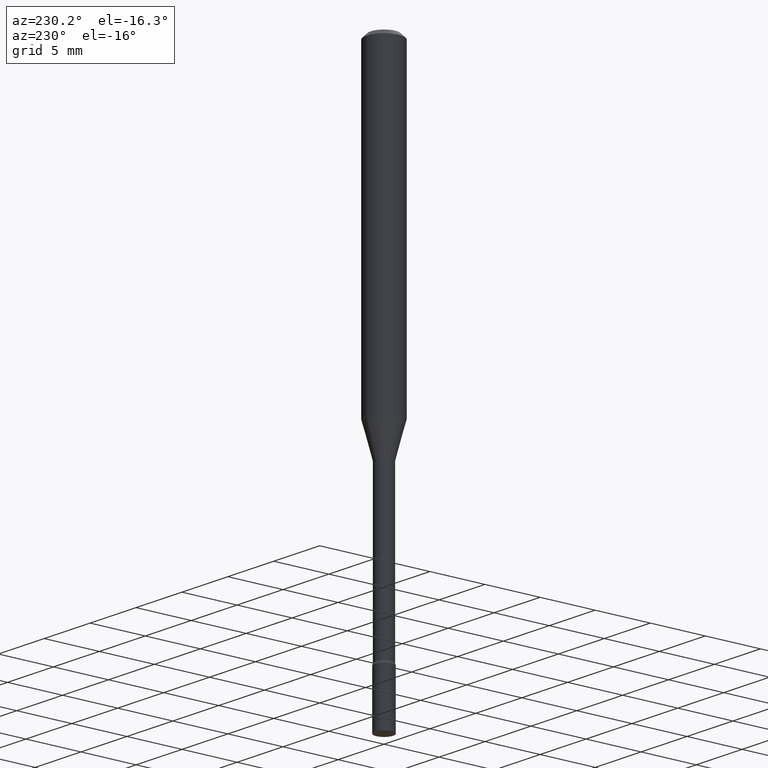
[diagram: clean part render]
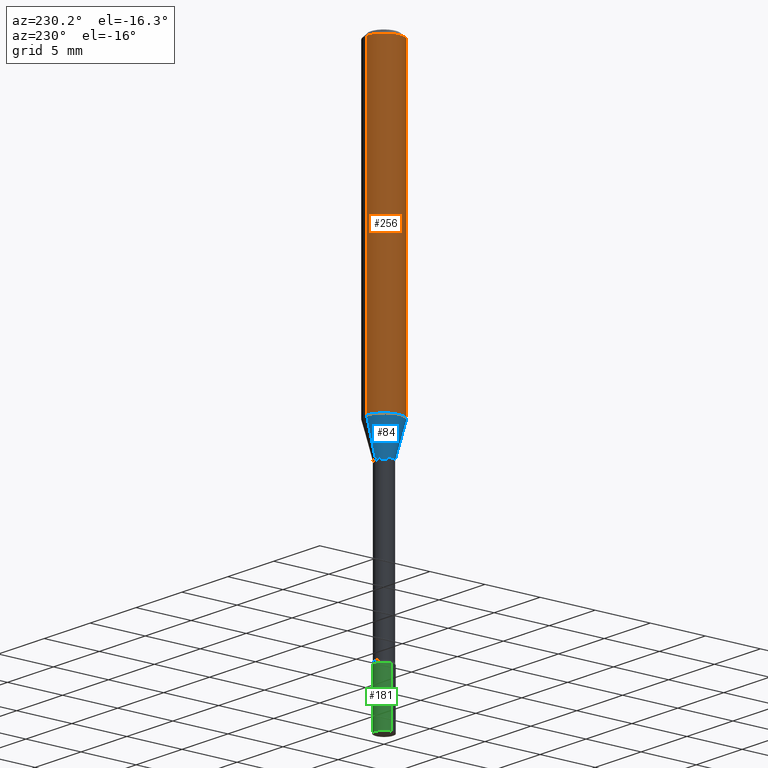
[diagram: same view with three faces highlighted in distinct colors, each labeled with its STEP entity id]
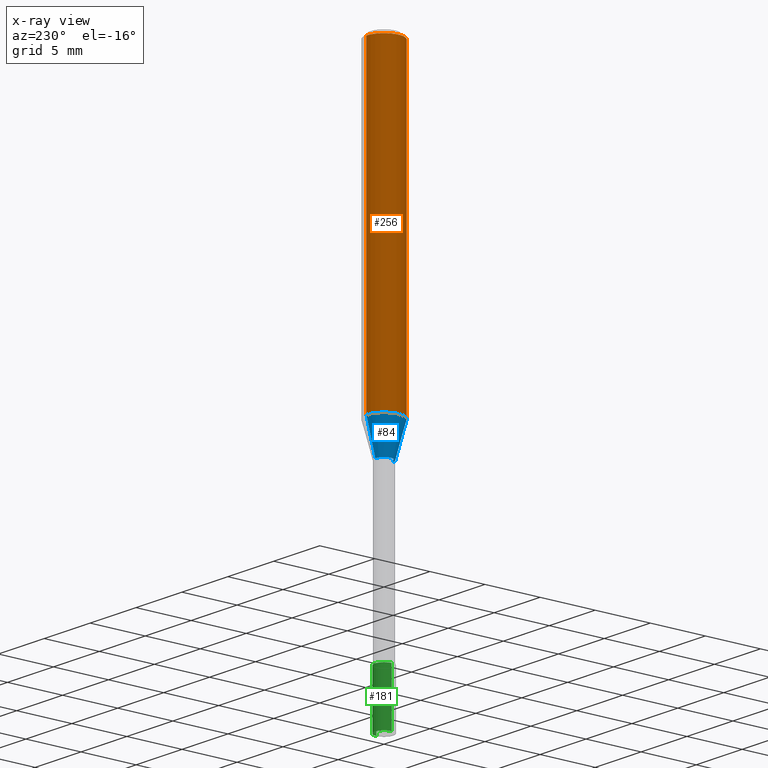
[diagram: x-ray of the same camera — body ghosted, the three highlighted faces saturated]
A machine part, auxiliary view with three faces highlighted in distinct colors.
The next image is the same camera in x-ray (body ghosted, the three faces saturated) — at least one of them is partly hidden behind the body in this view.
Their STEP definitions:

[orange] entity #256 — the highlighted cylindrical surface (edge-blend (fillet) strip) has radius 1.5875 mm, axis along (-0, 0, 1).
#1 = CIRCLE ( 'NONE', #319, 0.06250000000000000000 ) ;
#14 = VERTEX_POINT ( 'NONE', #334 ) ;
#18 = EDGE_CURVE ( 'NONE', #194, #268, #387, .T. ) ;
#22 = CARTESIAN_POINT ( 'NONE',  ( 3.668709739033173181E-31, -5.236496628825025190E-17, -0.01500000000000003067 ) ) ;
#25 = DIRECTION ( 'NONE',  ( -2.445806492688777345E-29, 3.490997752550010367E-15, 1.000000000000000000 ) ) ;
#42 = AXIS2_PLACEMENT_3D ( 'NONE', #508, #496, #258 ) ;
#58 = CARTESIAN_POINT ( 'NONE',  ( -4.364351673553916201E-16, -0.06250000000000000000, 2.181873595343755987E-16 ) ) ;
#75 = AXIS2_PLACEMENT_3D ( 'NONE', #189, #479, #113 ) ;
#97 = CIRCLE ( 'NONE', #75, 0.06250000000000000000 ) ;
#98 = DIRECTION ( 'NONE',  ( -6.982962677686265922E-15, -1.000000000000000000, 3.483106191921935554E-15 ) ) ;
#113 = DIRECTION ( 'NONE',  ( -6.982962677686265922E-15, -1.000000000000000000, 4.370956789862821150E-15 ) ) ;
#137 = CARTESIAN_POINT ( 'NONE',  ( 4.440892098500625669E-16, 0.06250000000000000000, -2.181873595343755987E-16 ) ) ;
#142 = CARTESIAN_POINT ( 'NONE',  ( -4.364351673553912750E-16, -0.06250000000000005551, -0.01499999999999981209 ) ) ;
#151 = VECTOR ( 'NONE', #25, 39.37007874015748143 ) ;
#163 = ORIENTED_EDGE ( 'NONE', *, *, #386, .T. ) ;
#182 = EDGE_LOOP ( 'NONE', ( #287, #163, #344, #443 ) ) ;
#189 = CARTESIAN_POINT ( 'NONE',  ( 2.692248343706835071E-29, -3.842754095748081161E-15, -1.100760976698174520 ) ) ;
#194 = VERTEX_POINT ( 'NONE', #300 ) ;
#239 = EDGE_CURVE ( 'NONE', #14, #268, #1, .T. ) ;
#256 = ADVANCED_FACE ( 'NONE', ( #336 ), #422, .T. ) ;
#258 = DIRECTION ( 'NONE',  ( -6.982962677686265922E-15, -1.000000000000000000, 3.490997752550009579E-15 ) ) ;
#268 = VERTEX_POINT ( 'NONE', #142 ) ;
#274 = EDGE_CURVE ( 'NONE', #360, #14, #304, .T. ) ;
#276 = CARTESIAN_POINT ( 'NONE',  ( 4.440892098500895360E-16, 0.06249999999999617667, -1.100760976698174742 ) ) ;
#287 = ORIENTED_EDGE ( 'NONE', *, *, #274, .F. ) ;
#300 = CARTESIAN_POINT ( 'NONE',  ( -4.364351673553646016E-16, -0.06250000000000383027, -1.100760976698174298 ) ) ;
#304 = LINE ( 'NONE', #137, #467 ) ;
#319 = AXIS2_PLACEMENT_3D ( 'NONE', #22, #461, #98 ) ;
#334 = CARTESIAN_POINT ( 'NONE',  ( 4.440892098500897333E-16, 0.06249999999999995837, -0.01500000000000024751 ) ) ;
#336 = FACE_OUTER_BOUND ( 'NONE', #182, .T. ) ;
#344 = ORIENTED_EDGE ( 'NONE', *, *, #18, .T. ) ;
#360 = VERTEX_POINT ( 'NONE', #276 ) ;
#386 = EDGE_CURVE ( 'NONE', #360, #194, #97, .T. ) ;
#387 = LINE ( 'NONE', #58, #151 ) ;
#422 = CYLINDRICAL_SURFACE ( 'NONE', #42, 0.06250000000000000000 ) ;
#443 = ORIENTED_EDGE ( 'NONE', *, *, #239, .F. ) ;
#461 = DIRECTION ( 'NONE',  ( -2.445806492688777345E-29, 3.490997752550009973E-15, 1.000000000000000000 ) ) ;
#465 = DIRECTION ( 'NONE',  ( -2.445806492688777345E-29, 3.490997752550010367E-15, 1.000000000000000000 ) ) ;
#467 = VECTOR ( 'NONE', #465, 39.37007874015748143 ) ;
#479 = DIRECTION ( 'NONE',  ( -2.445806492688777345E-29, 3.490997752550009973E-15, 1.000000000000000000 ) ) ;
#496 = DIRECTION ( 'NONE',  ( -2.445806492688777345E-29, 3.490997752550009973E-15, 1.000000000000000000 ) ) ;
#508 = CARTESIAN_POINT ( 'NONE',  ( 0.000000000000000000, 0.000000000000000000, 0.000000000000000000 ) ) ;

[blue] entity #84 — the highlighted conical surface has half-angle 15 deg.
#17 = LINE ( 'NONE', #62, #456 ) ;
#21 = CIRCLE ( 'NONE', #116, 0.03106111260566398607 ) ;
#62 = CARTESIAN_POINT ( 'NONE',  ( 2.207024792658399811E-16, 0.03106111260565973600, -1.218092501787273019 ) ) ;
#64 = CARTESIAN_POINT ( 'NONE',  ( 3.323958445579647462E-16, 0.03106111260565973600, -1.218092501787273019 ) ) ;
#73 = AXIS2_PLACEMENT_3D ( 'NONE', #330, #255, #366 ) ;
#75 = AXIS2_PLACEMENT_3D ( 'NONE', #189, #479, #113 ) ;
#76 = ORIENTED_EDGE ( 'NONE', *, *, #386, .F. ) ;
#84 = ADVANCED_FACE ( 'NONE', ( #515 ), #107, .T. ) ;
#94 = ORIENTED_EDGE ( 'NONE', *, *, #471, .T. ) ;
#97 = CIRCLE ( 'NONE', #75, 0.06250000000000000000 ) ;
#107 = CONICAL_SURFACE ( 'NONE', #73, 0.03106111260566398607, 0.2617993877991500740 ) ;
#113 = DIRECTION ( 'NONE',  ( -6.982962677686265922E-15, -1.000000000000000000, 4.370956789862821150E-15 ) ) ;
#114 = EDGE_CURVE ( 'NONE', #227, #194, #149, .T. ) ;
#116 = AXIS2_PLACEMENT_3D ( 'NONE', #197, #359, #518 ) ;
#146 = CARTESIAN_POINT ( 'NONE',  ( -2.168985900527322372E-16, -0.03106111260566823615, -1.218092501787272797 ) ) ;
#149 = LINE ( 'NONE', #146, #249 ) ;
#188 = DIRECTION ( 'NONE',  ( -1.807323732225328562E-15, -0.2588190451025179639, 0.9659258262890690894 ) ) ;
#189 = CARTESIAN_POINT ( 'NONE',  ( 2.692248343706835071E-29, -3.842754095748081161E-15, -1.100760976698174520 ) ) ;
#194 = VERTEX_POINT ( 'NONE', #300 ) ;
#197 = CARTESIAN_POINT ( 'NONE',  ( 2.979218549566828255E-29, -4.252358186137388202E-15, -1.218092501787273019 ) ) ;
#200 = EDGE_CURVE ( 'NONE', #296, #360, #17, .T. ) ;
#218 = CARTESIAN_POINT ( 'NONE',  ( -2.168985900527322372E-16, -0.03106111260566823615, -1.218092501787272797 ) ) ;
#227 = VERTEX_POINT ( 'NONE', #218 ) ;
#249 = VECTOR ( 'NONE', #188, 39.37007874015748854 ) ;
#255 = DIRECTION ( 'NONE',  ( -2.445806492688777345E-29, 3.490997752550009973E-15, 1.000000000000000000 ) ) ;
#272 = ORIENTED_EDGE ( 'NONE', *, *, #114, .T. ) ;
#276 = CARTESIAN_POINT ( 'NONE',  ( 4.440892098500895360E-16, 0.06249999999999617667, -1.100760976698174742 ) ) ;
#296 = VERTEX_POINT ( 'NONE', #64 ) ;
#300 = CARTESIAN_POINT ( 'NONE',  ( -4.364351673553646016E-16, -0.06250000000000383027, -1.100760976698174298 ) ) ;
#330 = CARTESIAN_POINT ( 'NONE',  ( 2.979218549566828255E-29, -4.252358186137388202E-15, -1.218092501787273019 ) ) ;
#341 = DIRECTION ( 'NONE',  ( 1.839019923739598738E-15, 0.2588190451025247363, 0.9659258262890673130 ) ) ;
#349 = ORIENTED_EDGE ( 'NONE', *, *, #200, .F. ) ;
#359 = DIRECTION ( 'NONE',  ( -2.445806492688777345E-29, 3.490997752550009973E-15, 1.000000000000000000 ) ) ;
#360 = VERTEX_POINT ( 'NONE', #276 ) ;
#366 = DIRECTION ( 'NONE',  ( -6.982962677686265922E-15, -1.000000000000000000, 4.397537249142375435E-15 ) ) ;
#386 = EDGE_CURVE ( 'NONE', #360, #194, #97, .T. ) ;
#456 = VECTOR ( 'NONE', #341, 39.37007874015748854 ) ;
#471 = EDGE_CURVE ( 'NONE', #296, #227, #21, .T. ) ;
#479 = DIRECTION ( 'NONE',  ( -2.445806492688777345E-29, 3.490997752550009973E-15, 1.000000000000000000 ) ) ;
#493 = EDGE_LOOP ( 'NONE', ( #349, #94, #272, #76 ) ) ;
#515 = FACE_OUTER_BOUND ( 'NONE', #493, .T. ) ;
#518 = DIRECTION ( 'NONE',  ( -6.982962677686265922E-15, -1.000000000000000000, 4.397537249142375435E-15 ) ) ;

[green] entity #181 — the highlighted cylindrical surface (edge-blend (fillet) strip) has radius 0.8255 mm, axis along (-0, 0, 1).
#12 = DIRECTION ( 'NONE',  ( 1.000000000000000000, -6.982962677686265922E-15, 4.876176775795935232E-29 ) ) ;
#27 = AXIS2_PLACEMENT_3D ( 'NONE', #452, #118, #12 ) ;
#30 = DIRECTION ( 'NONE',  ( -2.445468806185136597E-29, 3.491481338843145583E-15, 1.000000000000000000 ) ) ;
#54 = CARTESIAN_POINT ( 'NONE',  ( 0.03250000000000000111, -2.269462870248036484E-16, 1.584757452133678993E-30 ) ) ;
#59 = ORIENTED_EDGE ( 'NONE', *, *, #494, .T. ) ;
#72 = CARTESIAN_POINT ( 'NONE',  ( 4.890937612370273194E-29, -6.982962677686291165E-15, -2.000000000000000000 ) ) ;
#77 = CARTESIAN_POINT ( 'NONE',  ( 4.414071195164171423E-29, -6.302123816611877952E-15, -1.804999999999999938 ) ) ;
#89 = ORIENTED_EDGE ( 'NONE', *, *, #411, .T. ) ;
#111 = DIRECTION ( 'NONE',  ( 1.000000000000000000, -6.982962677686258033E-15, 0.000000000000000000 ) ) ;
#118 = DIRECTION ( 'NONE',  ( -2.445468806185136597E-29, 3.491481338843145583E-15, 1.000000000000000000 ) ) ;
#122 = AXIS2_PLACEMENT_3D ( 'NONE', #72, #30, #354 ) ;
#124 = VERTEX_POINT ( 'NONE', #162 ) ;
#132 = VERTEX_POINT ( 'NONE', #501 ) ;
#148 = EDGE_LOOP ( 'NONE', ( #89, #59, #298, #254 ) ) ;
#152 = CIRCLE ( 'NONE', #204, 0.03250000000000000111 ) ;
#162 = CARTESIAN_POINT ( 'NONE',  ( 0.03250000000000000111, -6.529070103636681305E-15, -1.804999999999999938 ) ) ;
#181 = ADVANCED_FACE ( 'NONE', ( #192 ), #322, .T. ) ;
#192 = FACE_OUTER_BOUND ( 'NONE', #148, .T. ) ;
#204 = AXIS2_PLACEMENT_3D ( 'NONE', #77, #352, #111 ) ;
#228 = DIRECTION ( 'NONE',  ( -2.445468806185136877E-29, 3.491481338843145188E-15, 1.000000000000000000 ) ) ;
#253 = EDGE_CURVE ( 'NONE', #132, #124, #345, .T. ) ;
#254 = ORIENTED_EDGE ( 'NONE', *, *, #253, .F. ) ;
#275 = LINE ( 'NONE', #477, #417 ) ;
#284 = DIRECTION ( 'NONE',  ( -2.445468806185136877E-29, 3.491481338843145188E-15, 1.000000000000000000 ) ) ;
#298 = ORIENTED_EDGE ( 'NONE', *, *, #516, .F. ) ;
#309 = VECTOR ( 'NONE', #228, 39.37007874015748143 ) ;
#322 = CYLINDRICAL_SURFACE ( 'NONE', #27, 0.03250000000000000111 ) ;
#345 = LINE ( 'NONE', #54, #309 ) ;
#352 = DIRECTION ( 'NONE',  ( -2.445468806185136597E-29, 3.491481338843145583E-15, 1.000000000000000000 ) ) ;
#354 = DIRECTION ( 'NONE',  ( 1.000000000000000000, -6.982962677686258033E-15, 0.000000000000000000 ) ) ;
#363 = CIRCLE ( 'NONE', #122, 0.03250000000000000111 ) ;
#365 = VERTEX_POINT ( 'NONE', #511 ) ;
#380 = VERTEX_POINT ( 'NONE', #435 ) ;
#411 = EDGE_CURVE ( 'NONE', #132, #380, #363, .T. ) ;
#417 = VECTOR ( 'NONE', #284, 39.37007874015748143 ) ;
#435 = CARTESIAN_POINT ( 'NONE',  ( -0.03250000000000000111, -6.411616858027052188E-15, -2.000000000000000000 ) ) ;
#452 = CARTESIAN_POINT ( 'NONE',  ( 0.000000000000000000, 0.000000000000000000, 0.000000000000000000 ) ) ;
#477 = CARTESIAN_POINT ( 'NONE',  ( -0.03250000000000000111, 2.309263891220325683E-16, -1.598653904332844407E-30 ) ) ;
#494 = EDGE_CURVE ( 'NONE', #380, #365, #275, .T. ) ;
#501 = CARTESIAN_POINT ( 'NONE',  ( 0.03250000000000000111, -7.209908964711093729E-15, -2.000000000000000000 ) ) ;
#511 = CARTESIAN_POINT ( 'NONE',  ( -0.03250000000000000111, -6.411616858027052188E-15, -1.804999999999999938 ) ) ;
#516 = EDGE_CURVE ( 'NONE', #124, #365, #152, .T. ) ;